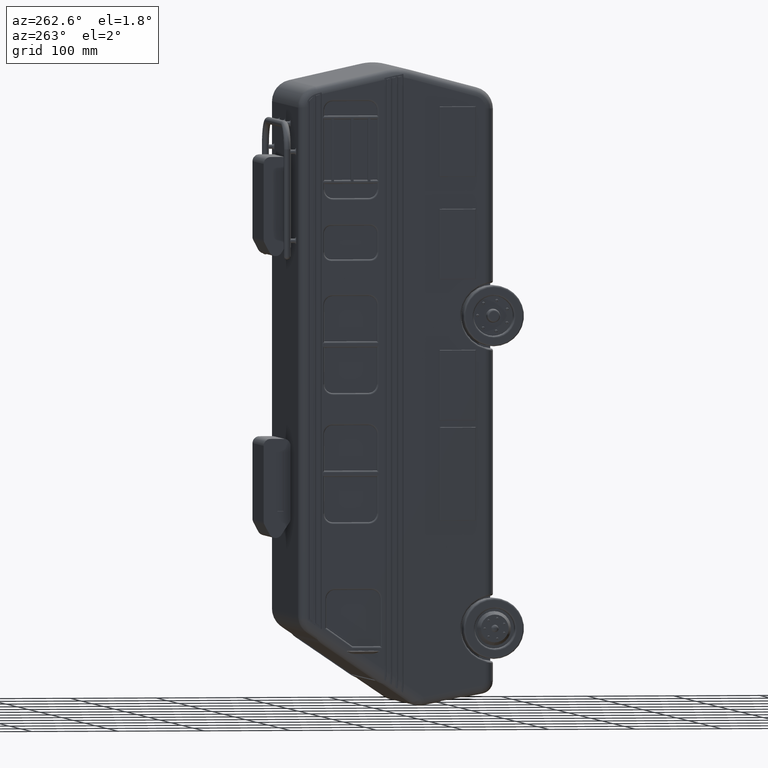
[diagram: clean part render]
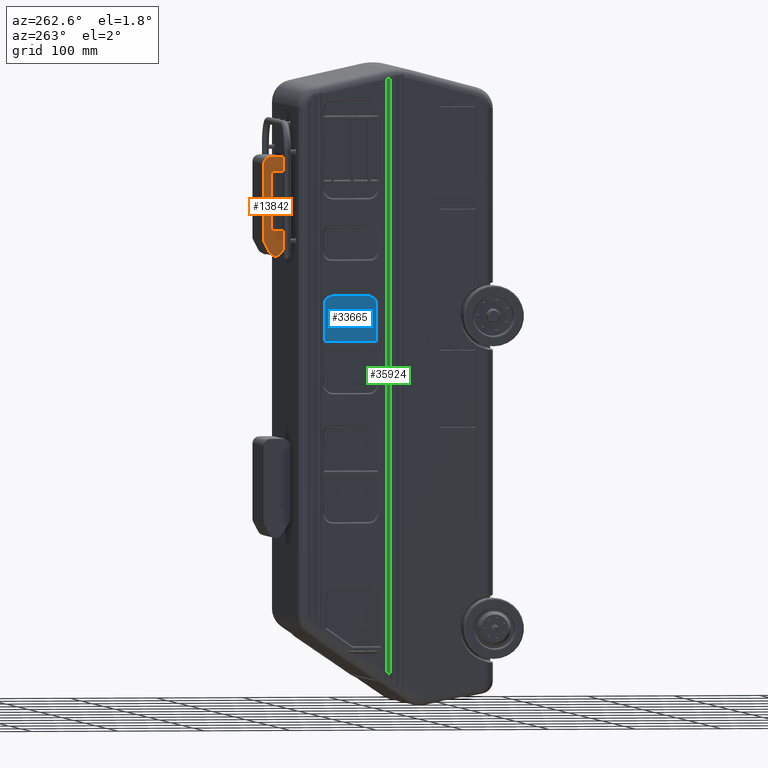
[diagram: same view with three faces highlighted in distinct colors, each labeled with its STEP entity id]
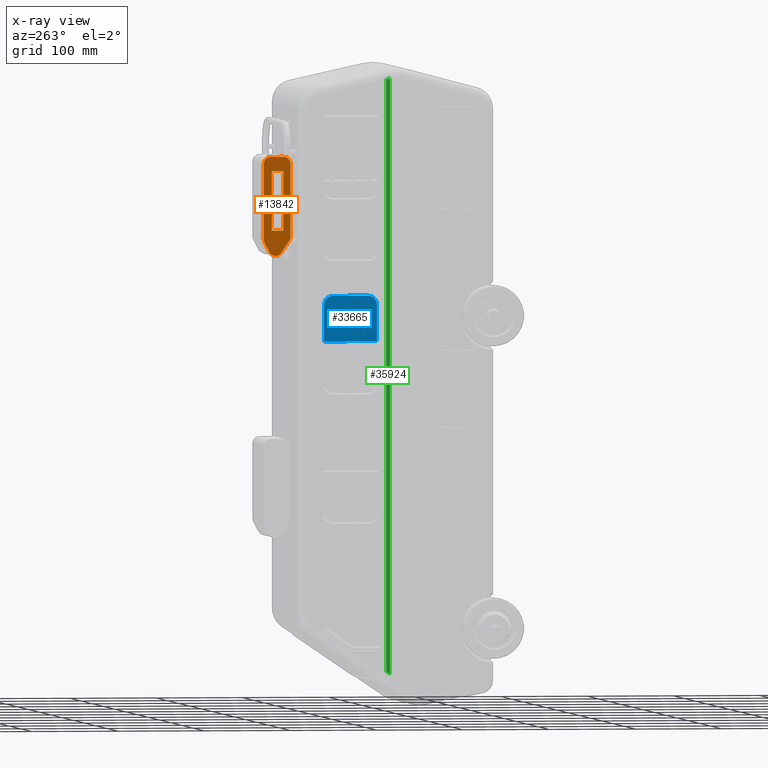
[diagram: x-ray of the same camera — body ghosted, the three highlighted faces saturated]
A machine part, auxiliary view with three faces highlighted in distinct colors.
The next image is the same camera in x-ray (body ghosted, the three faces saturated) — at least one of them is partly hidden behind the body in this view.
Their STEP definitions:

[orange] entity #13842 — the highlighted planar face has unit normal (1, 0, 0).
#515 = ORIENTED_EDGE ( 'NONE', *, *, #3109, .F. ) ;
#584 = CIRCLE ( 'NONE', #16295, 8.000000000000007105 ) ;
#1135 = ORIENTED_EDGE ( 'NONE', *, *, #22670, .F. ) ;
#1370 = ORIENTED_EDGE ( 'NONE', *, *, #4105, .F. ) ;
#1464 = CARTESIAN_POINT ( 'NONE',  ( -50.00000000000000000, 351.7662995694863071, -275.6834457558676945 ) ) ;
#1644 = VECTOR ( 'NONE', #38167, 1000.000000000000114 ) ;
#2273 = LINE ( 'NONE', #18735, #22175 ) ;
#2550 = DIRECTION ( 'NONE',  ( 1.000000000000000000, 0.000000000000000000, 0.000000000000000000 ) ) ;
#2566 = VERTEX_POINT ( 'NONE', #30953 ) ;
#2611 = LINE ( 'NONE', #37847, #39242 ) ;
#2895 = CIRCLE ( 'NONE', #30158, 8.000000000000007105 ) ;
#2915 = AXIS2_PLACEMENT_3D ( 'NONE', #26088, #38643, #35855 ) ;
#3109 = EDGE_CURVE ( 'NONE', #39995, #6714, #29519, .T. ) ;
#3394 = PLANE ( 'NONE',  #2915 ) ;
#3503 = CARTESIAN_POINT ( 'NONE',  ( -50.00000000000000000, 337.0864047065751379, -197.0978501405440397 ) ) ;
#3801 = CARTESIAN_POINT ( 'NONE',  ( -50.00000000000000000, 329.9254893026232480, -276.9113675318531023 ) ) ;
#4105 = EDGE_CURVE ( 'NONE', #6026, #31523, #28505, .T. ) ;
#4186 = CARTESIAN_POINT ( 'NONE',  ( -50.00000000000000000, 351.7662995694862502, -180.6180895246413058 ) ) ;
#4892 = LINE ( 'NONE', #8307, #7743 ) ;
#5819 = AXIS2_PLACEMENT_3D ( 'NONE', #41248, #41854, #9027 ) ;
#5956 = EDGE_CURVE ( 'NONE', #2566, #41673, #2273, .T. ) ;
#6020 = ORIENTED_EDGE ( 'NONE', *, *, #34464, .F. ) ;
#6026 = VERTEX_POINT ( 'NONE', #3503 ) ;
#6273 = VERTEX_POINT ( 'NONE', #35648 ) ;
#6714 = VERTEX_POINT ( 'NONE', #35826 ) ;
#7743 = VECTOR ( 'NONE', #34363, 1000.000000000000000 ) ;
#7917 = EDGE_LOOP ( 'NONE', ( #22579, #1135, #1370, #22408 ) ) ;
#7949 = AXIS2_PLACEMENT_3D ( 'NONE', #41112, #9124, #15767 ) ;
#8179 = DIRECTION ( 'NONE',  ( -0.000000000000000000, 1.000000000000000000, -0.000000000000000000 ) ) ;
#8271 = CARTESIAN_POINT ( 'NONE',  ( -50.00000000000000000, 353.0049033016745739, -290.4118530780028777 ) ) ;
#8307 = CARTESIAN_POINT ( 'NONE',  ( -50.00000000000000000, 350.3562131582355050, -265.5342779979834518 ) ) ;
#8537 = CARTESIAN_POINT ( 'NONE',  ( -50.00000000000000000, 351.7662995694862502, -180.6180895246413058 ) ) ;
#9027 = DIRECTION ( 'NONE',  ( 0.000000000000000000, 0.000000000000000000, -1.000000000000000000 ) ) ;
#9124 = DIRECTION ( 'NONE',  ( 1.000000000000000000, 0.000000000000000000, 0.000000000000000000 ) ) ;
#9954 = CIRCLE ( 'NONE', #5819, 8.000000000000007105 ) ;
#10963 = EDGE_CURVE ( 'NONE', #16997, #21814, #27340, .T. ) ;
#11065 = DIRECTION ( 'NONE',  ( 0.000000000000000000, -1.000000000000000000, 0.000000000000000000 ) ) ;
#11355 = VERTEX_POINT ( 'NONE', #40419 ) ;
#11518 = DIRECTION ( 'NONE',  ( 1.000000000000000000, 0.000000000000000000, 0.000000000000000000 ) ) ;
#11788 = VECTOR ( 'NONE', #36286, 1000.000000000000000 ) ;
#13254 = VERTEX_POINT ( 'NONE', #37504 ) ;
#13663 = FACE_BOUND ( 'NONE', #7917, .T. ) ;
#13842 = ADVANCED_FACE ( 'NONE', ( #13663, #32248 ), #3394, .F. ) ;
#14985 = CARTESIAN_POINT ( 'NONE',  ( -50.00000000000000000, 336.6037843163708203, -188.6180895246413058 ) ) ;
#15767 = DIRECTION ( 'NONE',  ( 0.000000000000000000, 0.000000000000000000, -1.000000000000000000 ) ) ;
#16153 = VERTEX_POINT ( 'NONE', #22216 ) ;
#16295 = AXIS2_PLACEMENT_3D ( 'NONE', #21838, #2550, #41790 ) ;
#16997 = VERTEX_POINT ( 'NONE', #37277 ) ;
#18735 = CARTESIAN_POINT ( 'NONE',  ( -50.00000000000000000, 359.7662995694863071, -275.6834457558676945 ) ) ;
#18887 = DIRECTION ( 'NONE',  ( 0.000000000000000000, 0.000000000000000000, 1.000000000000000000 ) ) ;
#18910 = CIRCLE ( 'NONE', #7949, 8.000000000000007105 ) ;
#20350 = CIRCLE ( 'NONE', #25828, 8.000000000000007105 ) ;
#20881 = CARTESIAN_POINT ( 'NONE',  ( -50.00000000000000000, 359.7662995694863071, -188.6180895246413058 ) ) ;
#21383 = LINE ( 'NONE', #8537, #24376 ) ;
#21814 = VERTEX_POINT ( 'NONE', #25081 ) ;
#21838 = CARTESIAN_POINT ( 'NONE',  ( -50.00000000000000000, 345.9388483920569115, -286.6607375086998104 ) ) ;
#21958 = LINE ( 'NONE', #34923, #37547 ) ;
#22175 = VECTOR ( 'NONE', #25995, 1000.000000000000000 ) ;
#22216 = CARTESIAN_POINT ( 'NONE',  ( -50.00000000000000000, 358.8323544791039126, -279.4345613251708755 ) ) ;
#22379 = DIRECTION ( 'NONE',  ( 0.000000000000000000, 0.000000000000000000, -1.000000000000000000 ) ) ;
#22408 = ORIENTED_EDGE ( 'NONE', *, *, #36242, .F. ) ;
#22579 = ORIENTED_EDGE ( 'NONE', *, *, #10963, .F. ) ;
#22670 = EDGE_CURVE ( 'NONE', #31523, #16997, #4892, .T. ) ;
#24109 = EDGE_LOOP ( 'NONE', ( #36588, #515, #32207, #26811, #32668, #39230, #39661, #41393, #25226, #6020 ) ) ;
#24376 = VECTOR ( 'NONE', #37538, 1000.000000000000000 ) ;
#24465 = CARTESIAN_POINT ( 'NONE',  ( -50.00000000000000000, 350.3562131582355050, -197.0978501405440397 ) ) ;
#25081 = CARTESIAN_POINT ( 'NONE',  ( -50.00000000000000000, 337.0864047065751379, -265.5342779979834518 ) ) ;
#25226 = ORIENTED_EDGE ( 'NONE', *, *, #37440, .F. ) ;
#25828 = AXIS2_PLACEMENT_3D ( 'NONE', #1464, #11518, #37514 ) ;
#25995 = DIRECTION ( 'NONE',  ( 0.000000000000000000, 0.000000000000000000, 1.000000000000000000 ) ) ;
#26088 = CARTESIAN_POINT ( 'NONE',  ( -50.00000000000000000, 345.9388483920569115, -286.6607375086998104 ) ) ;
#26685 = EDGE_CURVE ( 'NONE', #41728, #6273, #2895, .T. ) ;
#26811 = ORIENTED_EDGE ( 'NONE', *, *, #41778, .F. ) ;
#27340 = LINE ( 'NONE', #40307, #30270 ) ;
#27779 = CARTESIAN_POINT ( 'NONE',  ( -50.00000000000000000, 350.3562131582355050, -197.0978501405440397 ) ) ;
#27970 = LINE ( 'NONE', #8271, #1644 ) ;
#28344 = CARTESIAN_POINT ( 'NONE',  ( -50.00000000000000000, 336.6037843163708203, -180.6180895246413058 ) ) ;
#28505 = LINE ( 'NONE', #24465, #41841 ) ;
#29471 = EDGE_CURVE ( 'NONE', #32181, #41728, #21383, .T. ) ;
#29519 = LINE ( 'NONE', #30125, #11788 ) ;
#30125 = CARTESIAN_POINT ( 'NONE',  ( -50.00000000000000000, 329.9254893026232480, -276.9113675318531023 ) ) ;
#30158 = AXIS2_PLACEMENT_3D ( 'NONE', #14985, #40544, #34359 ) ;
#30270 = VECTOR ( 'NONE', #11065, 1000.000000000000000 ) ;
#30953 = CARTESIAN_POINT ( 'NONE',  ( -50.00000000000000000, 359.7662995694863071, -275.6834457558676945 ) ) ;
#31523 = VERTEX_POINT ( 'NONE', #27779 ) ;
#32181 = VERTEX_POINT ( 'NONE', #4186 ) ;
#32207 = ORIENTED_EDGE ( 'NONE', *, *, #36232, .F. ) ;
#32248 = FACE_OUTER_BOUND ( 'NONE', #24109, .T. ) ;
#32668 = ORIENTED_EDGE ( 'NONE', *, *, #26685, .F. ) ;
#34359 = DIRECTION ( 'NONE',  ( 0.000000000000000000, 0.000000000000000000, 1.000000000000000000 ) ) ;
#34363 = DIRECTION ( 'NONE',  ( -0.000000000000000000, -0.000000000000000000, -1.000000000000000000 ) ) ;
#34464 = EDGE_CURVE ( 'NONE', #11355, #16153, #27970, .T. ) ;
#34923 = CARTESIAN_POINT ( 'NONE',  ( -50.00000000000000000, 328.6037843163708203, -188.6180895246413058 ) ) ;
#35648 = CARTESIAN_POINT ( 'NONE',  ( -50.00000000000000000, 328.6037843163708203, -188.6180895246413058 ) ) ;
#35826 = CARTESIAN_POINT ( 'NONE',  ( -50.00000000000000000, 339.2605533783092824, -291.0653232678097879 ) ) ;
#35855 = DIRECTION ( 'NONE',  ( 0.000000000000000000, 0.000000000000000000, -1.000000000000000000 ) ) ;
#36232 = EDGE_CURVE ( 'NONE', #13254, #39995, #9954, .T. ) ;
#36242 = EDGE_CURVE ( 'NONE', #21814, #6026, #2611, .T. ) ;
#36286 = DIRECTION ( 'NONE',  ( 0.000000000000000000, 0.5505732198887481887, -0.8347868767184448702 ) ) ;
#36588 = ORIENTED_EDGE ( 'NONE', *, *, #39909, .F. ) ;
#37277 = CARTESIAN_POINT ( 'NONE',  ( -50.00000000000000000, 350.3562131582355050, -265.5342779979834518 ) ) ;
#37440 = EDGE_CURVE ( 'NONE', #16153, #2566, #20350, .T. ) ;
#37504 = CARTESIAN_POINT ( 'NONE',  ( -50.00000000000000000, 328.6037843163708203, -272.5067817727431247 ) ) ;
#37514 = DIRECTION ( 'NONE',  ( 0.000000000000000000, 0.000000000000000000, -1.000000000000000000 ) ) ;
#37538 = DIRECTION ( 'NONE',  ( 0.000000000000000000, -1.000000000000000000, 0.000000000000000000 ) ) ;
#37547 = VECTOR ( 'NONE', #22379, 1000.000000000000000 ) ;
#37847 = CARTESIAN_POINT ( 'NONE',  ( -50.00000000000000000, 337.0864047065751379, -265.5342779979834518 ) ) ;
#38167 = DIRECTION ( 'NONE',  ( 0.000000000000000000, 0.4688894461628969057, 0.8832568637022029101 ) ) ;
#38359 = EDGE_CURVE ( 'NONE', #41673, #32181, #18910, .T. ) ;
#38643 = DIRECTION ( 'NONE',  ( 1.000000000000000000, 0.000000000000000000, 0.000000000000000000 ) ) ;
#39230 = ORIENTED_EDGE ( 'NONE', *, *, #29471, .F. ) ;
#39242 = VECTOR ( 'NONE', #18887, 1000.000000000000000 ) ;
#39661 = ORIENTED_EDGE ( 'NONE', *, *, #38359, .F. ) ;
#39909 = EDGE_CURVE ( 'NONE', #6714, #11355, #584, .T. ) ;
#39995 = VERTEX_POINT ( 'NONE', #3801 ) ;
#40307 = CARTESIAN_POINT ( 'NONE',  ( -50.00000000000000000, 350.3562131582355050, -265.5342779979834518 ) ) ;
#40419 = CARTESIAN_POINT ( 'NONE',  ( -50.00000000000000000, 353.0049033016745739, -290.4118530780028777 ) ) ;
#40544 = DIRECTION ( 'NONE',  ( 1.000000000000000000, 0.000000000000000000, -0.000000000000000000 ) ) ;
#41112 = CARTESIAN_POINT ( 'NONE',  ( -50.00000000000000000, 351.7662995694863071, -188.6180895246413058 ) ) ;
#41248 = CARTESIAN_POINT ( 'NONE',  ( -50.00000000000000000, 336.6037843163708203, -272.5067817727431247 ) ) ;
#41393 = ORIENTED_EDGE ( 'NONE', *, *, #5956, .F. ) ;
#41673 = VERTEX_POINT ( 'NONE', #20881 ) ;
#41728 = VERTEX_POINT ( 'NONE', #28344 ) ;
#41778 = EDGE_CURVE ( 'NONE', #6273, #13254, #21958, .T. ) ;
#41790 = DIRECTION ( 'NONE',  ( 0.000000000000000000, 0.000000000000000000, -1.000000000000000000 ) ) ;
#41841 = VECTOR ( 'NONE', #8179, 1000.000000000000000 ) ;
#41854 = DIRECTION ( 'NONE',  ( 1.000000000000000000, 0.000000000000000000, 0.000000000000000000 ) ) ;

[blue] entity #33665 — the highlighted planar face has unit normal (-1, 0, 0).
#526 = ORIENTED_EDGE ( 'NONE', *, *, #28518, .T. ) ;
#5164 = ORIENTED_EDGE ( 'NONE', *, *, #29784, .F. ) ;
#5612 = VECTOR ( 'NONE', #31137, 1000.000000000000000 ) ;
#6426 = AXIS2_PLACEMENT_3D ( 'NONE', #11657, #24290, #21090 ) ;
#7190 = CARTESIAN_POINT ( 'NONE',  ( -123.0000000000000000, 248.0378519221189038, -338.5698256191824385 ) ) ;
#8401 = LINE ( 'NONE', #18848, #13876 ) ;
#9526 = EDGE_LOOP ( 'NONE', ( #13797, #33267, #41111, #526, #37442, #5164 ) ) ;
#10132 = FACE_OUTER_BOUND ( 'NONE', #9526, .T. ) ;
#10965 = DIRECTION ( 'NONE',  ( 0.000000000000000000, 0.000000000000000000, 1.000000000000000000 ) ) ;
#10997 = VERTEX_POINT ( 'NONE', #16001 ) ;
#10999 = CARTESIAN_POINT ( 'NONE',  ( -123.0000000000000000, 238.0378519221188469, -348.5698256191824953 ) ) ;
#11383 = EDGE_CURVE ( 'NONE', #26145, #10997, #8401, .T. ) ;
#11657 = CARTESIAN_POINT ( 'NONE',  ( -123.0000000000000000, 289.0878270288156386, -348.5698256191824385 ) ) ;
#12032 = VECTOR ( 'NONE', #39660, 1000.000000000000000 ) ;
#12561 = EDGE_CURVE ( 'NONE', #28065, #22937, #31503, .T. ) ;
#13797 = ORIENTED_EDGE ( 'NONE', *, *, #34894, .F. ) ;
#13876 = VECTOR ( 'NONE', #10965, 1000.000000000000000 ) ;
#15866 = AXIS2_PLACEMENT_3D ( 'NONE', #37409, #27864, #24224 ) ;
#16001 = CARTESIAN_POINT ( 'NONE',  ( -123.0000000000000000, 299.0878270288156386, -348.5698256191824953 ) ) ;
#18848 = CARTESIAN_POINT ( 'NONE',  ( -123.0000000000000000, 299.0878270288156386, 0.000000000000000000 ) ) ;
#20596 = CARTESIAN_POINT ( 'NONE',  ( -123.0000000000000000, 0.000000000000000000, 0.000000000000000000 ) ) ;
#21090 = DIRECTION ( 'NONE',  ( 0.000000000000000000, 1.665334536937733233E-14, 1.000000000000000000 ) ) ;
#21133 = CARTESIAN_POINT ( 'NONE',  ( -123.0000000000000000, 0.000000000000000000, -390.9193697801924259 ) ) ;
#22937 = VERTEX_POINT ( 'NONE', #7190 ) ;
#23803 = DIRECTION ( 'NONE',  ( 0.000000000000000000, 0.000000000000000000, 1.000000000000000000 ) ) ;
#24224 = DIRECTION ( 'NONE',  ( 0.000000000000000000, 0.000000000000000000, 1.000000000000000000 ) ) ;
#24290 = DIRECTION ( 'NONE',  ( 1.000000000000000000, -0.000000000000000000, -0.000000000000000000 ) ) ;
#24671 = PLANE ( 'NONE',  #26822 ) ;
#24953 = CARTESIAN_POINT ( 'NONE',  ( -123.0000000000000000, 289.0878270288155818, -338.5698256191824385 ) ) ;
#25329 = CARTESIAN_POINT ( 'NONE',  ( -123.0000000000000000, 0.000000000000000000, -338.5698256191824385 ) ) ;
#26145 = VERTEX_POINT ( 'NONE', #39344 ) ;
#26698 = CARTESIAN_POINT ( 'NONE',  ( -123.0000000000000000, 238.0378519221188469, 0.000000000000000000 ) ) ;
#26822 = AXIS2_PLACEMENT_3D ( 'NONE', #20596, #36768, #23803 ) ;
#27618 = CIRCLE ( 'NONE', #6426, 10.00000000000000888 ) ;
#27864 = DIRECTION ( 'NONE',  ( -1.000000000000000000, 0.000000000000000000, 0.000000000000000000 ) ) ;
#28065 = VERTEX_POINT ( 'NONE', #10999 ) ;
#28102 = DIRECTION ( 'NONE',  ( 0.000000000000000000, -1.000000000000000000, 0.000000000000000000 ) ) ;
#28518 = EDGE_CURVE ( 'NONE', #41982, #28065, #33263, .T. ) ;
#29784 = EDGE_CURVE ( 'NONE', #41823, #22937, #31483, .T. ) ;
#31103 = VECTOR ( 'NONE', #28102, 1000.000000000000000 ) ;
#31137 = DIRECTION ( 'NONE',  ( 0.000000000000000000, -1.000000000000000000, 0.000000000000000000 ) ) ;
#31483 = LINE ( 'NONE', #25329, #31103 ) ;
#31503 = CIRCLE ( 'NONE', #15866, 10.00000000000000888 ) ;
#33263 = LINE ( 'NONE', #26698, #12032 ) ;
#33267 = ORIENTED_EDGE ( 'NONE', *, *, #11383, .F. ) ;
#33598 = EDGE_CURVE ( 'NONE', #26145, #41982, #41132, .T. ) ;
#33665 = ADVANCED_FACE ( 'NONE', ( #10132 ), #24671, .T. ) ;
#34894 = EDGE_CURVE ( 'NONE', #10997, #41823, #27618, .T. ) ;
#36768 = DIRECTION ( 'NONE',  ( -1.000000000000000000, 0.000000000000000000, 0.000000000000000000 ) ) ;
#37373 = CARTESIAN_POINT ( 'NONE',  ( -123.0000000000000000, 238.0378519221188469, -390.9193697801924259 ) ) ;
#37409 = CARTESIAN_POINT ( 'NONE',  ( -123.0000000000000000, 248.0378519221188469, -348.5698256191824385 ) ) ;
#37442 = ORIENTED_EDGE ( 'NONE', *, *, #12561, .T. ) ;
#39344 = CARTESIAN_POINT ( 'NONE',  ( -123.0000000000000000, 299.0878270288156386, -390.9193697801924259 ) ) ;
#39660 = DIRECTION ( 'NONE',  ( 0.000000000000000000, 0.000000000000000000, 1.000000000000000000 ) ) ;
#41111 = ORIENTED_EDGE ( 'NONE', *, *, #33598, .T. ) ;
#41132 = LINE ( 'NONE', #21133, #5612 ) ;
#41823 = VERTEX_POINT ( 'NONE', #24953 ) ;
#41982 = VERTEX_POINT ( 'NONE', #37373 ) ;

[green] entity #35924 — the highlighted planar face has unit normal (-1, -0, 0).
#435 = VECTOR ( 'NONE', #12194, 999.9999999999998863 ) ;
#1044 = AXIS2_PLACEMENT_3D ( 'NONE', #40423, #34468, #8641 ) ;
#1492 = LINE ( 'NONE', #8970, #435 ) ;
#1681 = VECTOR ( 'NONE', #38981, 1000.000000000000000 ) ;
#7854 = DIRECTION ( 'NONE',  ( 0.000000000000000000, 0.000000000000000000, 1.000000000000000000 ) ) ;
#8641 = DIRECTION ( 'NONE',  ( 0.000000000000000000, 0.000000000000000000, 1.000000000000000000 ) ) ;
#8970 = CARTESIAN_POINT ( 'NONE',  ( -125.0000000000000000, 309.7926487927446146, -714.8863277321224814 ) ) ;
#10968 = EDGE_CURVE ( 'NONE', #22566, #14713, #24122, .T. ) ;
#10978 = CARTESIAN_POINT ( 'NONE',  ( -125.0000000000000000, 222.9989794767512308, -773.9542415721733732 ) ) ;
#11879 = VECTOR ( 'NONE', #7854, 1000.000000000000000 ) ;
#12194 = DIRECTION ( 'NONE',  ( -0.000000000000000000, -0.8267128799608792766, -0.5626240433067085656 ) ) ;
#12710 = CARTESIAN_POINT ( 'NONE',  ( -125.0000000000000000, 222.9989794767512876, -88.58382367478800745 ) ) ;
#14713 = VERTEX_POINT ( 'NONE', #15086 ) ;
#15086 = CARTESIAN_POINT ( 'NONE',  ( -125.0000000000000000, 227.3038499920727702, -89.53892356403940767 ) ) ;
#15388 = EDGE_CURVE ( 'NONE', #22566, #28780, #1492, .T. ) ;
#18680 = FACE_OUTER_BOUND ( 'NONE', #31456, .T. ) ;
#18765 = CARTESIAN_POINT ( 'NONE',  ( -125.0000000000000000, 306.8527553617188346, -107.1880376171120162 ) ) ;
#19970 = ORIENTED_EDGE ( 'NONE', *, *, #30558, .F. ) ;
#20892 = ORIENTED_EDGE ( 'NONE', *, *, #15388, .T. ) ;
#22566 = VERTEX_POINT ( 'NONE', #36897 ) ;
#23003 = EDGE_CURVE ( 'NONE', #38688, #14713, #34959, .T. ) ;
#23643 = ORIENTED_EDGE ( 'NONE', *, *, #23003, .T. ) ;
#24122 = LINE ( 'NONE', #37101, #11879 ) ;
#28086 = PLANE ( 'NONE',  #1044 ) ;
#28780 = VERTEX_POINT ( 'NONE', #10978 ) ;
#30558 = EDGE_CURVE ( 'NONE', #38688, #28780, #41952, .T. ) ;
#31456 = EDGE_LOOP ( 'NONE', ( #38051, #20892, #19970, #23643 ) ) ;
#34468 = DIRECTION ( 'NONE',  ( -1.000000000000000000, -0.000000000000000000, 0.000000000000000000 ) ) ;
#34959 = LINE ( 'NONE', #18765, #1681 ) ;
#35369 = DIRECTION ( 'NONE',  ( 0.000000000000000000, -3.965729576800463102E-17, -1.000000000000000000 ) ) ;
#35924 = ADVANCED_FACE ( 'NONE', ( #18680 ), #28086, .T. ) ;
#36897 = CARTESIAN_POINT ( 'NONE',  ( -125.0000000000000000, 227.3038499920727702, -771.0245380270239366 ) ) ;
#37101 = CARTESIAN_POINT ( 'NONE',  ( -125.0000000000000000, 227.3038499920727702, 0.000000000000000000 ) ) ;
#38051 = ORIENTED_EDGE ( 'NONE', *, *, #10968, .F. ) ;
#38688 = VERTEX_POINT ( 'NONE', #12710 ) ;
#38981 = DIRECTION ( 'NONE',  ( -0.000000000000000000, 0.9762608648340964645, -0.2165980696898799629 ) ) ;
#39347 = VECTOR ( 'NONE', #35369, 1000.000000000000000 ) ;
#40423 = CARTESIAN_POINT ( 'NONE',  ( -125.0000000000000000, 303.6037843163708203, -705.7924860525527038 ) ) ;
#41952 = LINE ( 'NONE', #42165, #39347 ) ;
#42165 = CARTESIAN_POINT ( 'NONE',  ( -125.0000000000000000, 222.9989794767512876, -8.843536485072720323E-15 ) ) ;